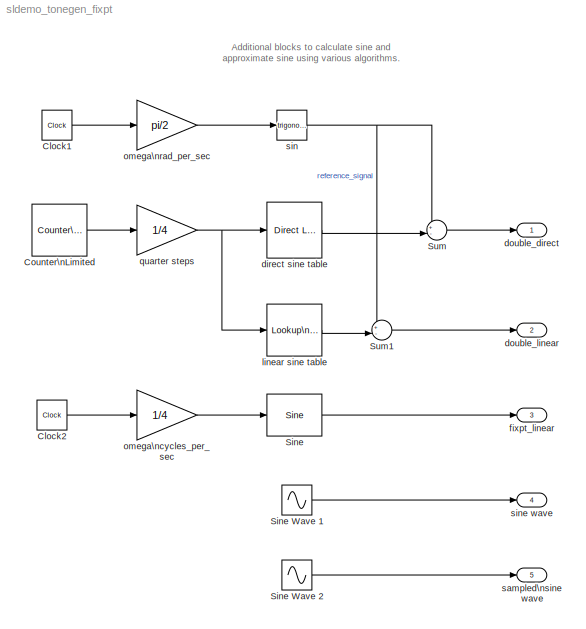
MODEL sldemo_tonegen_fixpt
KIND model
CONFIG StopFcn = subplot(2,1,1), plot(tonegenOut.time, tonegenOut.signals(1).values); grid\nsubplot(2,1,2), plot(tonegenOut.time, tonegenOut.signals(2).values); grid\n
BLOCK [Clock] Clock1
  Decimation = 10
BLOCK [Clock] Clock2
  Decimation = 10
BLOCK [Reference] Counter\nLimited  REF=simulink/Sources/Counter\nLimited
  Ports = [0, 1]
  ShowPortLabels = on
  SourceBlock = simulink/Sources/Counter\nLimited
  SourceType = Counter Limited
  tsamp = -1
  uplimit = 1023
BLOCK [Reference] Sine  REF=simulink/Lookup\nTables/Sine
  NumDataPoints = (2^5)+1
  Ports = [1, 1]
  ShowPortLabels = on
  SourceBlock = simulink/Lookup\nTables/Sine
  SourceType = Sine
BLOCK [Sin] Sine Wave 1
  Ports = [0, 1]
  SampleTime = 0
  SineType = Time based
BLOCK [Sin] Sine Wave 2
  Frequency = pi/2
  Ports = [0, 1]
  SampleTime = 1/256
  SineType = Sample based
BLOCK [Sum] Sum
  IconShape = round
  InputSameDT = off
  Inputs = +-|
  OutDataTypeMode = Inherit via internal rule
  Ports = [2, 1]
  SaturateOnIntegerOverflow = off
BLOCK [Sum] Sum1
  IconShape = round
  InputSameDT = off
  Inputs = +-|
  OutDataTypeMode = Inherit via internal rule
  Ports = [2, 1]
  SaturateOnIntegerOverflow = off
BLOCK [Reference] direct sine table  REF=simulink/Lookup\nTables/Direct Lookup\nTable (n-D)
  Ports = [1, 1]
  SourceBlock = simulink/Lookup\nTables/Direct Lookup\nTable (n-D)
  SourceType = LookupNDDirect
  clipFlag = Warning
  explicitNumDims = 1
  maskTabDims = 1
  mxTable = sin( 2*pi * (0:255)/256)'
  outDims = Element
  tabIsInput = off
BLOCK [Outport] double_direct
  BusOutputAsStruct = off
  IconDisplay = Port number
BLOCK [Outport] double_linear
  BusOutputAsStruct = off
  IconDisplay = Port number
  Port = 2
BLOCK [Outport] fixpt_linear
  BusOutputAsStruct = off
  IconDisplay = Port number
  Port = 3
BLOCK [Reference] linear sine table  REF=simulink/Lookup\nTables/Lookup\nTable (n-D)
  Ports = [1, 1]
  SourceBlock = simulink/Lookup\nTables/Lookup\nTable (n-D)
  SourceType = LookupNDInterp
  bp1 = [0:256]
  bp2 = [10,22,31]
  bp3 = [1:3]
  bp4 = [1:3]
  bpcell = { [1:3], [1:3] }
  cacheBpFlag = on
  explicitNumDims = 2
  extrapMethod = None - Clip
  interpMethod = Linear
  numDimsPopupSelect = 1
  rangeErrorMode = Warning
  searchMode = Linear Search
  tableData = sin( 2*pi * (0:256)/256 )'
  vectorInputFlag = off
BLOCK [Gain] omega\ncycles_per_sec
  Gain = 1/4
  OutDataTypeMode = Inherit via internal rule
  ParameterDataTypeMode = Inherit via internal rule
  SaturateOnIntegerOverflow = off
BLOCK [Gain] omega\nrad_per_sec
  Gain = pi/2
  OutDataTypeMode = Inherit via internal rule
  ParameterDataTypeMode = Inherit via internal rule
  SaturateOnIntegerOverflow = off
BLOCK [Gain] quarter steps
  Gain = 1/4
  OutDataType = float('double')
  OutDataTypeMode = Specify via dialog
  ParameterDataTypeMode = Inherit via internal rule
  SaturateOnIntegerOverflow = off
BLOCK [Outport] sampled\nsine wave
  BusOutputAsStruct = off
  IconDisplay = Port number
  Port = 5
BLOCK [Trigonometry] sin
  Ports = [1, 1]
BLOCK [Outport] sine wave
  BusOutputAsStruct = off
  IconDisplay = Port number
  Port = 4
ANNOTATION (root): Additional blocks to calculate sine and \napproximate sine using various algorithms.
LINE Clock1:1 -> omega\nrad_per_sec:1
LINE Clock2:1 -> omega\ncycles_per_sec:1
LINE Counter\nLimited:1 -> quarter steps:1
LINE Sine Wave 1:1 -> sine wave:1
LINE Sine Wave 2:1 -> sampled\nsine wave:1
LINE Sine:1 -> fixpt_linear:1
LINE Sum1:1 -> double_linear:1
LINE Sum:1 -> double_direct:1
LINE direct sine table:1 -> Sum:2
LINE linear sine table:1 -> Sum1:2
LINE omega\ncycles_per_sec:1 -> Sine:1
LINE omega\nrad_per_sec:1 -> sin:1
NET quarter steps:1 -> direct sine table:1, linear sine table:1
NET sin:1 -> Sum1:1, Sum:1
note: NET lines group one-source signal fan-out (src -> all destinations, sorted); 1:1 wires keep LINE
